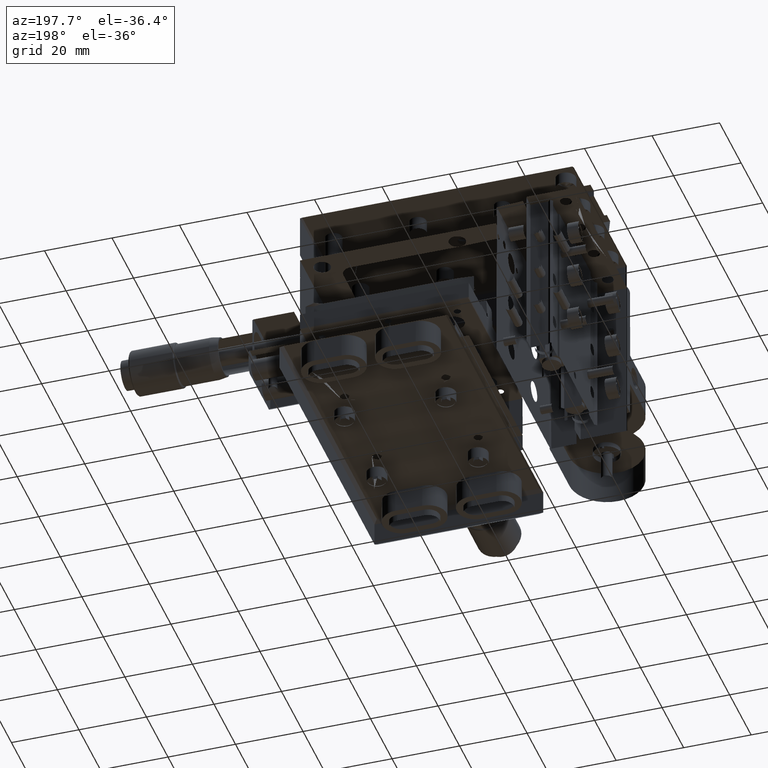
[diagram: clean part render]
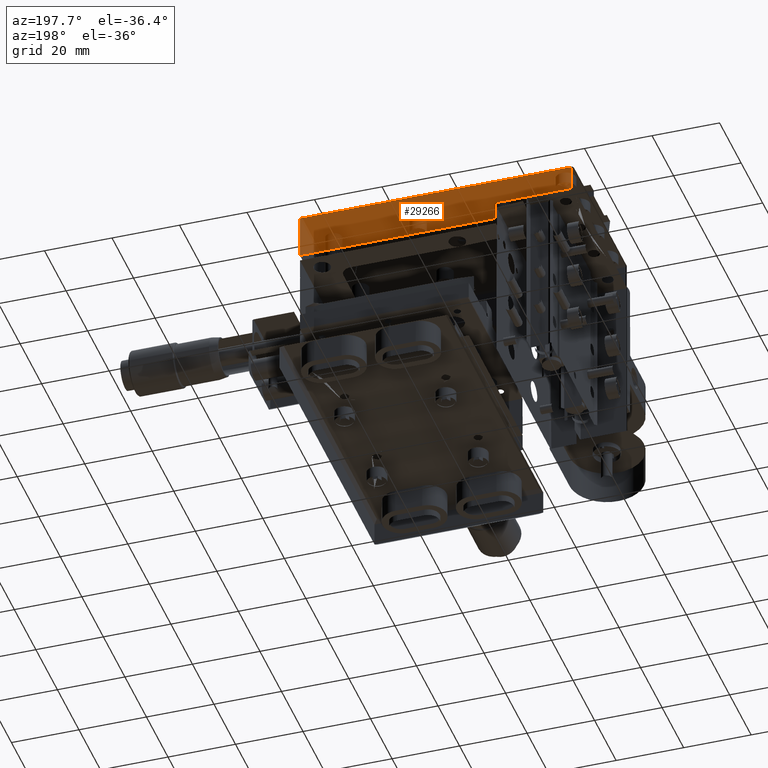
[diagram: same view with one face highlighted and labeled with its STEP entity id]
A machine part, auxiliary view. The second image highlights one B-rep face of the part: STEP entity #29266.
In plain terms, the highlighted face is a freeform B-spline surface patch.
Its self-contained STEP definition (entity closure, byte-faithful):
#79 = CARTESIAN_POINT ( 'NONE',  ( -22.38076767884039953, 22.50071742813409870, 36.82274179201690600 ) ) ;
#301 = CARTESIAN_POINT ( 'NONE',  ( 35.41923232115959763, 22.50071742813409870, 31.32274179201689890 ) ) ;
#495 = ORIENTED_EDGE ( 'NONE', *, *, #36765, .T. ) ;
#2653 = EDGE_CURVE ( 'NONE', #41446, #22550, #28434, .T. ) ;
#2815 = CARTESIAN_POINT ( 'NONE',  ( -45.08076767884040237, 22.50071742813409870, 44.32274179201689890 ) ) ;
#4050 = CARTESIAN_POINT ( 'NONE',  ( -45.08076767884040237, 22.50071742813409870, 44.32274179201689890 ) ) ;
#4261 = VERTEX_POINT ( 'NONE', #12732 ) ;
#4675 = ORIENTED_EDGE ( 'NONE', *, *, #21361, .T. ) ;
#5910 = B_SPLINE_CURVE_WITH_KNOTS ( 'NONE', 1,
 ( #34510, #79 ),
 .UNSPECIFIED., .F., .F.,
 ( 2, 2 ),
 ( 0.5859030837004400860, 1.000000000000000000 ),
 .UNSPECIFIED. ) ;
#6196 = CARTESIAN_POINT ( 'NONE',  ( -31.78076767884040166, 22.50071742813409870, 36.82274179201690600 ) ) ;
#6448 = CARTESIAN_POINT ( 'NONE',  ( -45.08076767884040237, 22.50071742813409870, 36.82274179201690600 ) ) ;
#7314 = CARTESIAN_POINT ( 'NONE',  ( -45.08076767884040237, 22.50071742813409870, 44.32274179201689890 ) ) ;
#8493 = CARTESIAN_POINT ( 'NONE',  ( -22.38076767884039953, 22.50071742813409870, 31.32274179201689890 ) ) ;
#9817 = EDGE_CURVE ( 'NONE', #12251, #25844, #27963, .T. ) ;
#9916 = CARTESIAN_POINT ( 'NONE',  ( -45.08076767884040237, 22.50071742813409870, 36.82274179201690600 ) ) ;
#11364 = FACE_OUTER_BOUND ( 'NONE', #39079, .T. ) ;
#12251 = VERTEX_POINT ( 'NONE', #37715 ) ;
#12684 = B_SPLINE_CURVE_WITH_KNOTS ( 'NONE', 1,
 ( #9916, #30126 ),
 .UNSPECIFIED., .F., .F.,
 ( 2, 2 ),
 ( 0.000000000000000000, 0.5859030837004400860 ),
 .UNSPECIFIED. ) ;
#12732 = CARTESIAN_POINT ( 'NONE',  ( -22.38076767884039953, 22.50071742813409870, 36.82274179201690600 ) ) ;
#14005 = CARTESIAN_POINT ( 'NONE',  ( 35.41923232115959763, 22.50071742813409870, 44.32274179201689890 ) ) ;
#14268 = EDGE_CURVE ( 'NONE', #25844, #41446, #29854, .T. ) ;
#14965 = CARTESIAN_POINT ( 'NONE',  ( -45.08076767884040237, 22.50071742813409870, 31.32274179201689890 ) ) ;
#16333 = ORIENTED_EDGE ( 'NONE', *, *, #14268, .T. ) ;
#16828 = ORIENTED_EDGE ( 'NONE', *, *, #34718, .T. ) ;
#19015 = CARTESIAN_POINT ( 'NONE',  ( -22.38076767884039953, 22.50071742813409870, 31.32274179201689890 ) ) ;
#19711 = CARTESIAN_POINT ( 'NONE',  ( 35.41923232115959763, 22.50071742813409870, 31.32274179201689890 ) ) ;
#21361 = EDGE_CURVE ( 'NONE', #24116, #12251, #28140, .T. ) ;
#21806 = CARTESIAN_POINT ( 'NONE',  ( 35.41923232115959763, 22.50071742813409870, 44.32274179201689890 ) ) ;
#22550 = VERTEX_POINT ( 'NONE', #29287 ) ;
#23315 = CARTESIAN_POINT ( 'NONE',  ( -22.38076767884039953, 22.50071742813409870, 31.32274179201689890 ) ) ;
#24116 = VERTEX_POINT ( 'NONE', #23315 ) ;
#25352 = CARTESIAN_POINT ( 'NONE',  ( -45.08076767884040237, 22.50071742813409870, 44.32274179201689890 ) ) ;
#25844 = VERTEX_POINT ( 'NONE', #35420 ) ;
#26266 = CARTESIAN_POINT ( 'NONE',  ( 35.41923232115959763, 22.50071742813409870, 31.32274179201689890 ) ) ;
#27963 = B_SPLINE_CURVE_WITH_KNOTS ( 'NONE', 1,
 ( #19711, #43056 ),
 .UNSPECIFIED., .F., .F.,
 ( 2, 2 ),
 ( 0.000000000000000000, 1.000000000000000000 ),
 .UNSPECIFIED. ) ;
#28140 = B_SPLINE_CURVE_WITH_KNOTS ( 'NONE', 1,
 ( #19015, #26266 ),
 .UNSPECIFIED., .F., .F.,
 ( 2, 2 ),
 ( 0.000000000000000000, 1.000000000000000000 ),
 .UNSPECIFIED. ) ;
#28381 = VERTEX_POINT ( 'NONE', #6196 ) ;
#28434 = B_SPLINE_CURVE_WITH_KNOTS ( 'NONE', 1,
 ( #2815, #6448 ),
 .UNSPECIFIED., .F., .F.,
 ( 2, 2 ),
 ( 0.000000000000000000, 1.000000000000000000 ),
 .UNSPECIFIED. ) ;
#28644 = ORIENTED_EDGE ( 'NONE', *, *, #30916, .T. ) ;
#29266 = ADVANCED_FACE ( 'NONE', ( #11364 ), #41259, .T. ) ;
#29287 = CARTESIAN_POINT ( 'NONE',  ( -45.08076767884040237, 22.50071742813409870, 36.82274179201690600 ) ) ;
#29528 = ORIENTED_EDGE ( 'NONE', *, *, #9817, .T. ) ;
#29854 = B_SPLINE_CURVE_WITH_KNOTS ( 'NONE', 1,
 ( #14005, #4050 ),
 .UNSPECIFIED., .F., .F.,
 ( 2, 2 ),
 ( 0.000000000000000000, 1.000000000000000000 ),
 .UNSPECIFIED. ) ;
#30126 = CARTESIAN_POINT ( 'NONE',  ( -31.78076767884040166, 22.50071742813409870, 36.82274179201690600 ) ) ;
#30916 = EDGE_CURVE ( 'NONE', #22550, #28381, #12684, .T. ) ;
#34510 = CARTESIAN_POINT ( 'NONE',  ( -31.78076767884040166, 22.50071742813409870, 36.82274179201690600 ) ) ;
#34718 = EDGE_CURVE ( 'NONE', #28381, #4261, #5910, .T. ) ;
#35420 = CARTESIAN_POINT ( 'NONE',  ( 35.41923232115959763, 22.50071742813409870, 44.32274179201689890 ) ) ;
#36765 = EDGE_CURVE ( 'NONE', #4261, #24116, #37235, .T. ) ;
#37235 = B_SPLINE_CURVE_WITH_KNOTS ( 'NONE', 1,
 ( #43411, #8493 ),
 .UNSPECIFIED., .F., .F.,
 ( 2, 2 ),
 ( 0.000000000000000000, 1.000000000000000000 ),
 .UNSPECIFIED. ) ;
#37715 = CARTESIAN_POINT ( 'NONE',  ( 35.41923232115959763, 22.50071742813409870, 31.32274179201689890 ) ) ;
#38943 = ORIENTED_EDGE ( 'NONE', *, *, #2653, .T. ) ;
#39079 = EDGE_LOOP ( 'NONE', ( #16828, #495, #4675, #29528, #16333, #38943, #28644 ) ) ;
#41259 = B_SPLINE_SURFACE_WITH_KNOTS ( 'NONE', 1, 1, ( 
 ( #21806, #301 ),
 ( #7314, #14965 ) ),
 .UNSPECIFIED., .F., .F., .F.,
 ( 2, 2 ),
 ( 2, 2 ),
 ( 0.000000000000000000, 1.000000000000000000 ),
 ( 0.000000000000000000, 1.000000000000000000 ),
 .UNSPECIFIED. ) ;
#41446 = VERTEX_POINT ( 'NONE', #25352 ) ;
#43056 = CARTESIAN_POINT ( 'NONE',  ( 35.41923232115959763, 22.50071742813409870, 44.32274179201689890 ) ) ;
#43411 = CARTESIAN_POINT ( 'NONE',  ( -22.38076767884039953, 22.50071742813409870, 36.82274179201690600 ) ) ;